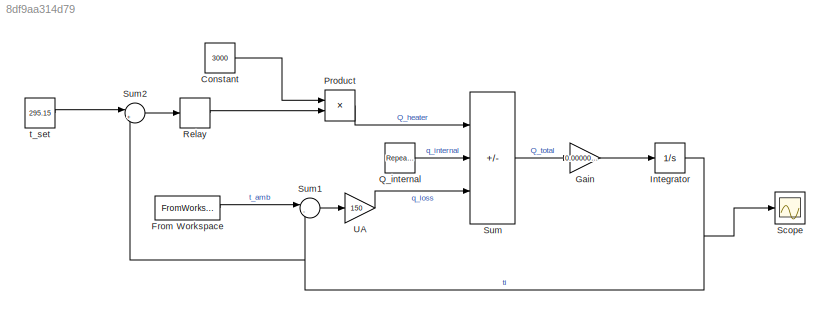
MODEL slx_8df9aa314d79
KIND model
CONFIG AbsTol = auto
CONFIG EnableMultiTasking = off
CONFIG FixedStep = auto
CONFIG MaxStep = auto
CONFIG MinStep = auto
CONFIG RelTol = 1e-3
CONFIG SampleTimeConstraint = Unconstrained
CONFIG SolverName = VariableStepAuto
CONFIG StartTime = 0.0
CONFIG StopTime = 2592000
BLOCK [Constant] Constant
  Value = 3000
BLOCK [FromWorkspace] From Workspace
  VariableName = weather_data
BLOCK [Gain] Gain
  Gain = 0.0000025
BLOCK [Integrator] Integrator
  InitialCondition = 293.15
  Ports = [1, 1]
BLOCK [Product] Product
  Ports = [2, 1]
BLOCK [Reference] Q_internal  REF=simulink/Sources/Repeating
Sequence
  Ports = [0, 1]
  SourceBlock = simulink/Sources/Repeating\nSequence
  SourceProductBaseCode = SL
  SourceType = Repeating table
BLOCK [Relay] Relay
  OffSwitchValue = -1
  OnSwitchValue = 1
BLOCK [Scope] Scope
  Floating = off
  NumInputPorts = 1
  Ports = [1]
  ScopeSpecificationString = Simulink.scopes.TimeScopeBlockCfg('CurrentConfiguration', extmgr.ConfigurationSet(extmgr.Configuration('Core','General UI',true),extmgr.Configuration('Core','Source UI',true),extmgr.Configuration('Sources','WiredSimulink',true),extmgr.Configuration('Visuals','Time Domain',true,'SerializedDisplays',{struct('MinYLimReal','284.43356','MaxYLimReal','608.04312','YLabelReal','','MinYLimMag','284.43356',...<+1449ch>
BLOCK [Sum] Sum
  IconShape = rectangular
  Inputs = +|+|-
  Ports = [3, 1]
BLOCK [Sum] Sum1
  Inputs = |-+
  Ports = [2, 1]
BLOCK [Sum] Sum2
  Inputs = |+-
  Ports = [2, 1]
BLOCK [Gain] UA
  Gain = 150
BLOCK [Constant] t_set
  Value = 295.15
LINE Constant:1 -> Product:1
LINE From Workspace:1 -> Sum1:1
LINE Gain:1 -> Integrator:1
NET Integrator:1 -> Scope:1, Sum1:2, Sum2:2
LINE Product:1 -> Sum:1
LINE Q_internal:1 -> Sum:2
LINE Relay:1 -> Product:2
LINE Sum1:1 -> UA:1
LINE Sum2:1 -> Relay:1
LINE Sum:1 -> Gain:1
LINE UA:1 -> Sum:3
LINE t_set:1 -> Sum2:1
note: NET lines group one-source signal fan-out (src -> all destinations, sorted); 1:1 wires keep LINE
